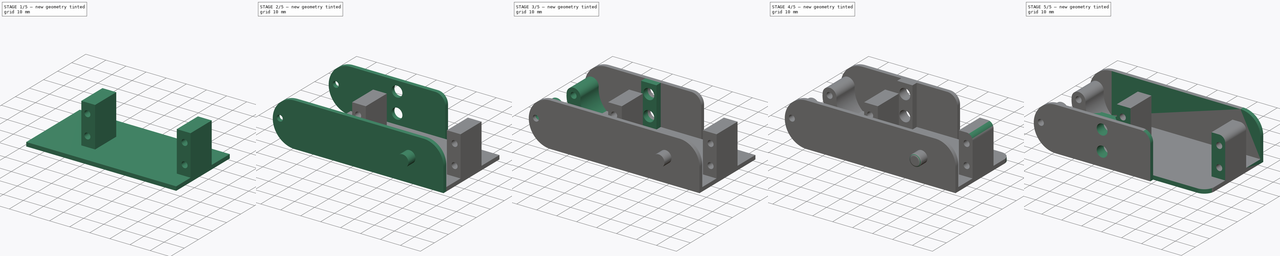
[diagram: build sequence overview — one tinted view per stage of 5, left to right]
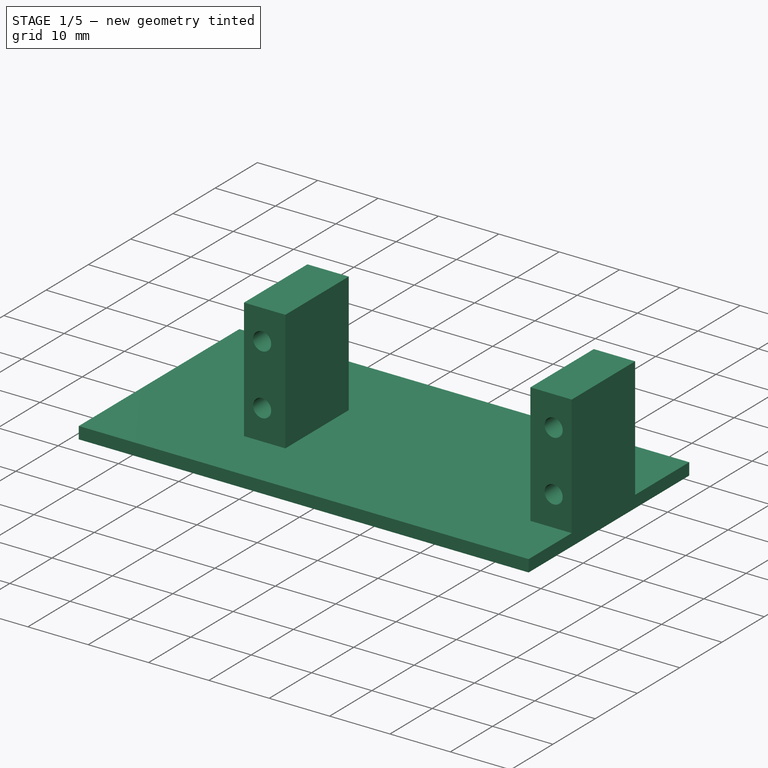
[diagram: stage 1 of 5 — iso view after this stage's code; geometry added in this stage tinted green]
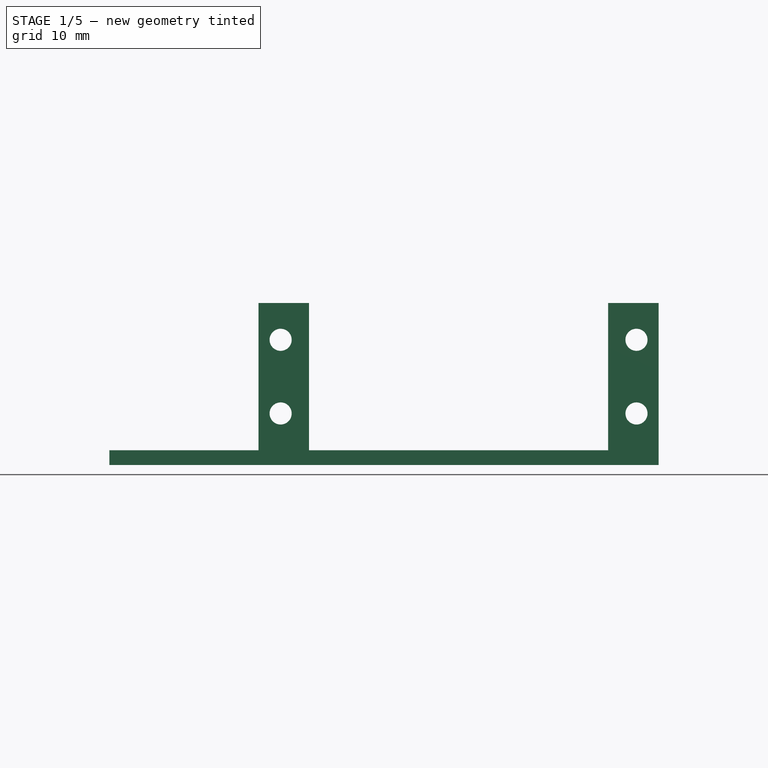
[diagram: stage 1 of 5 — front view after this stage's code; geometry added in this stage tinted green]
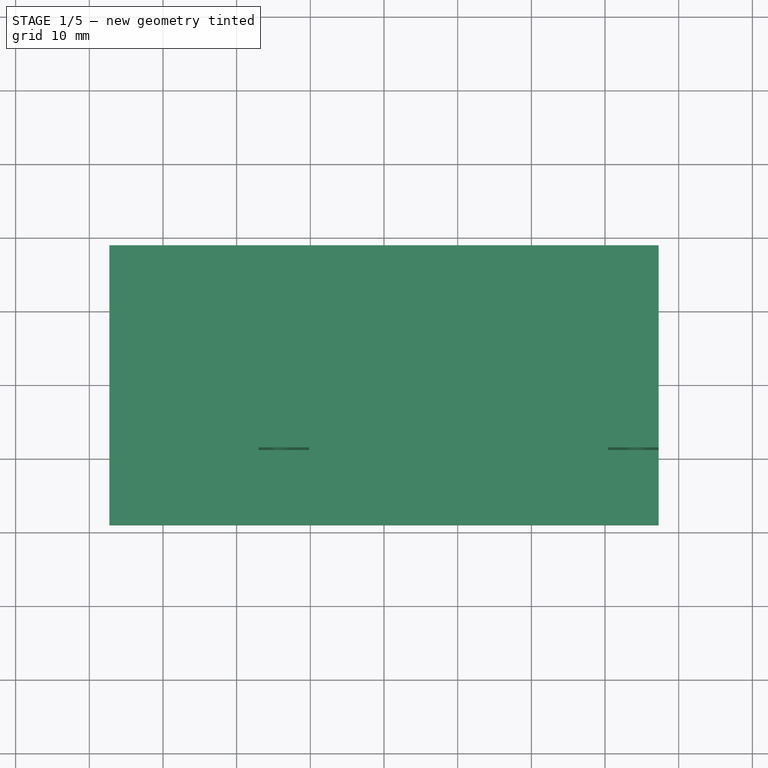
[diagram: stage 1 of 5 — top view after this stage's code; geometry added in this stage tinted green]
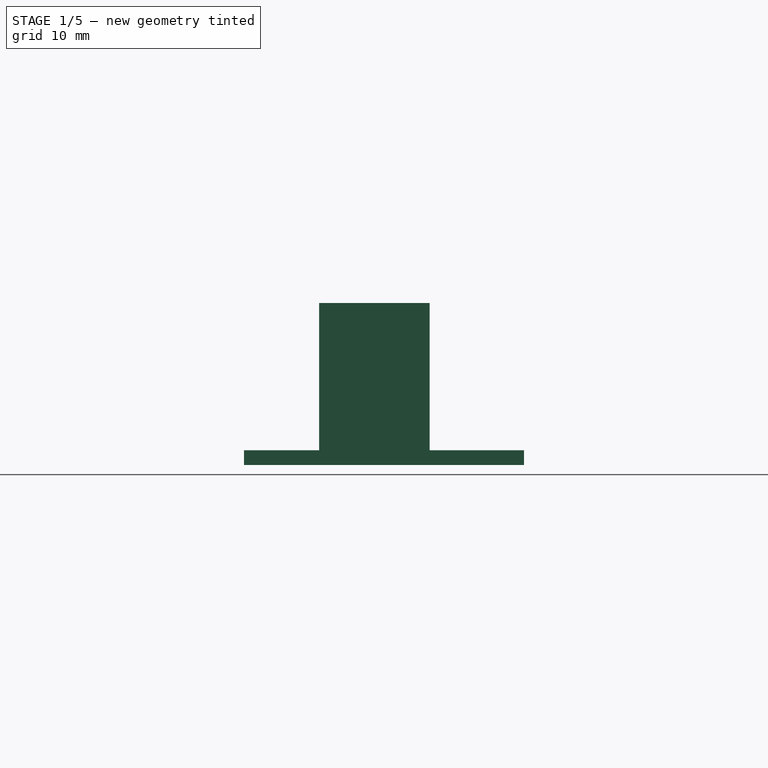
[diagram: stage 1 of 5 — right view after this stage's code; geometry added in this stage tinted green]
FCSTD DOCUMENT  (FreeCAD 0.21R33668 +26 (Git))
Label: 3BL_calf2
License: All rights reserved
LicenseURL: http://en.wikipedia.org/wiki/All_rights_reserved
objects: Sketcher::SketchObject×9, PartDesign::Pad×8, PartDesign::Fillet×3, PartDesign::Chamfer×2, Spreadsheet::Sheet×1, PartDesign::Pocket×1, PartDesign::Body×1, Part::Mirroring×1
note: 39 computed .brp shape members not serialized (recipe doc carries the construction recipe); baked Part::Feature solids carry a one-line shape summary decoded from their .brp

FEATURE [Sketcher::SketchObject] Sketch  label="baseSketch"
  FullyConstrained = false
  MapMode = 5
  Support = -> [XY_Plane]
  expr: Constraints[6] = Spreadsheet.servo_y
  sketch-geometry (4):
    g0: LineSegment StartX=-37.2687 StartY=19 StartZ=0 EndX=37.2687 EndY=19 EndZ=0
    g1: LineSegment StartX=37.2687 StartY=19 StartZ=0 EndX=37.2687 EndY=-19 EndZ=0
    g2: LineSegment StartX=37.2687 StartY=-19 StartZ=0 EndX=-37.2687 EndY=-19 EndZ=0
    g3: LineSegment StartX=-37.2687 StartY=-19 StartZ=0 EndX=-37.2687 EndY=19 EndZ=0
  constraints (9):
    c: Coincident(g0,g1)
    c: Coincident(g1,g2)
    c: Coincident(g2,g3)
    c: Coincident(g3,g0)
    c: Horizontal(g2)
    c: Vertical(g1)
    c: DistanceY(g3,g3) = 38
    c: Symmetric(g0,g2,g-1)
    c: Symmetric(g0,g0,g-2)
FEATURE [Spreadsheet::Sheet] Spreadsheet
  cells = A1='tolerance; B1(tolerance)=0.2; A2='thickness; B2(thickness)=2; A3='calf_len_overall; B3(calf_len_overall)=86; A4='servo_outer_x; B4(servo_x)=54.3; A5='servo_inner_x; B5(servo_inner_x)=40.2; A6='servo_y; B6(servo_y)=38; D6='sketch 41,5 real 38,0; A7='servo_z; B7(servo_z)=20; D7='also half circles diameter plus thickness; A8='foothold_y_len; B8(foothold_y_len)=15; A9='foothold_y_pos; B9(foothold_y_pos)==25.8 + B2; C9='c; D9='sketch 27.8 real 25,1; A10='foothold_z_len; B10(foothold_z_len)==B7; C10='c; A11='foothold_x_len; B11(foothold_x_len)==(B4 - B5) / 2 - B1; C11='c; A12='upper_hole_z_pos; B12(upper_hole_z_pos)=15; A13='lower_hole_z_pos; B13(lower_hole_z_pos)=5; A14='hole_x_pos; B14(hole_x_pos)=3; A15='hole_diameter; B15(hole_diameter)=3; A16='axis_x_pos; B16(axis_x_pos)=37.25; A17='axis_z_pos; B17(axis_z_pos)==10 + B2; A18='axis_y_pos; B18(axis_y_pos)=0; A19='axis_diameter; B19(axis_diameter)=5.9; A20='axis_length; B20(axis_length)=5; A21='plate_y_dim; B21(plate_y_dim)==B6 + B2; C21='c; A22='servo_axis_x_pos; B22(servo_axis_x_pos)=17; A23='calf_axis_distance; B23(calf_axis_distance)=65; A24='ankle_screw_extrusion; B24(ankle_screw_extrusion)=13
FEATURE [PartDesign::Pad] Pad  label="basePad"
  Direction = (0,0,1)
  Length = 2
  Length2 = 10
  Profile = -> Sketch
  ReferenceAxis = -> Sketch [N_Axis]
  Type = 0
  expr: Length = Spreadsheet.thickness
FEATURE [Sketcher::SketchObject] Sketch001  label="servoHolderSketch"
  ExternalGeometry = -> [Pad]
  FullyConstrained = true
  MapMode = 5
  Placement = pos=(0,0,2) rot=(0,0,1;0rad)
  Support = -> [Pad]
  expr: Constraints[20] = Spreadsheet.foothold_y_len
  expr: Constraints[22] = Spreadsheet.servo_x
  expr: Constraints[23] = Spreadsheet.foothold_y_pos
  expr: Constraints[9] = Spreadsheet.foothold_x_len
  sketch-geometry (8):
    g0: LineSegment StartX=37.2687 StartY=6.2 StartZ=0 EndX=30.4187 EndY=6.2 EndZ=0
    g1: LineSegment StartX=30.4187 StartY=6.2 StartZ=0 EndX=30.4187 EndY=-8.8 EndZ=0
    g2: LineSegment StartX=30.4187 StartY=-8.8 StartZ=0 EndX=37.2687 EndY=-8.8 EndZ=0
    g3: LineSegment StartX=37.2687 StartY=-8.8 StartZ=0 EndX=37.2687 EndY=6.2 EndZ=0
    g4: LineSegment StartX=-17.0313 StartY=6.2 StartZ=0 EndX=-10.1813 EndY=6.2 EndZ=0
    g5: LineSegment StartX=-10.1813 StartY=6.2 StartZ=0 EndX=-10.1813 EndY=-8.8 EndZ=0
    g6: LineSegment StartX=-10.1813 StartY=-8.8 StartZ=0 EndX=-17.0313 EndY=-8.8 EndZ=0
    g7: LineSegment StartX=-17.0313 StartY=-8.8 StartZ=0 EndX=-17.0313 EndY=6.2 EndZ=0
  constraints (24):
    c: Coincident(g0,g1)
    c: Coincident(g1,g2)
    c: Coincident(g2,g3)
    c: Coincident(g3,g0)
    c: Horizontal(g0)
    c: Horizontal(g2)
    c: Vertical(g1)
    c: Vertical(g3)
    c: PointOnObject(g0,g-3)
    c: DistanceX(g0,g0) = 6.85
    c: Coincident(g4,g5)
    c: Coincident(g5,g6)
    c: Coincident(g6,g7)
    c: Coincident(g7,g4)
    c: Horizontal(g4)
    c: Horizontal(g6)
    c: Vertical(g5)
    c: Vertical(g7)
    c: Horizontal(g4,g0)
    c: Horizontal(g5,g1)
    c: DistanceY(g3,g3) = 15
    c: Equal(g4,g0)
    c: DistanceX(g6,g2) = 54.3
    c: DistanceY(g2,g-3) = 27.8
FEATURE [PartDesign::Pad] Pad001  label="servoHolderPad"
  BaseFeature = -> Pad
  Direction = (0,0,1)
  Length = 20
  Length2 = 10
  Profile = -> Sketch001
  ReferenceAxis = -> Sketch001 [N_Axis]
  Type = 0
  expr: Length = Spreadsheet.foothold_z_len
FEATURE [Sketcher::SketchObject] Sketch002  label="servoHolderHolesSketch"
  ExternalGeometry = -> [Pad001]
  FullyConstrained = true
  MapMode = 5
  Placement = pos=(0,-8.8,0) rot=(1,0,0;1.5708rad)
  Support = -> [Pad001]
  expr: Constraints[10] = Spreadsheet.hole_x_pos
  expr: Constraints[11] = Spreadsheet.hole_x_pos
  expr: Constraints[4] = Spreadsheet.lower_hole_z_pos
  expr: Constraints[5] = Spreadsheet.upper_hole_z_pos
  expr: Constraints[9] = Spreadsheet.hole_diameter
  sketch-geometry (4):
    g0: Circle CenterX=-14.0313 CenterY=17 CenterZ=0 NormalX=0 NormalY=0 NormalZ=1 AngleXU=0 Radius=1.5
    g1: Circle CenterX=-14.0313 CenterY=7 CenterZ=0 NormalX=0 NormalY=0 NormalZ=1 AngleXU=0 Radius=1.5
    g2: Circle CenterX=34.2687 CenterY=17 CenterZ=0 NormalX=0 NormalY=0 NormalZ=1 AngleXU=0 Radius=1.5
    g3: Circle CenterX=34.2687 CenterY=7 CenterZ=0 NormalX=0 NormalY=0 NormalZ=1 AngleXU=0 Radius=1.5
  constraints (12):
    c: Vertical(g0,g1)
    c: Vertical(g2,g3)
    c: Horizontal(g2,g0)
    c: Horizontal(g1,g3)
    c: DistanceY(g-3,g3) = 5
    c: DistanceY(g-3,g2) = 15
    c: Equal(g2,g3)
    c: Equal(g2,g0)
    c: Equal(g2,g1)
    c: Diameter(g2) = 3
    c: DistanceX(g3,g-3) = 3
    c: DistanceX(g-4,g1) = 3
FEATURE [PartDesign::Pocket] Pocket  label="servoHolderHolesPocket"
  BaseFeature = -> Pad001
  Direction = (0,1,-2e-16)
  Length = 17
  Length2 = 5
  Profile = -> Sketch002
  ReferenceAxis = -> Sketch002 [N_Axis]
  Type = 0
  expr: Length = Spreadsheet.foothold_y_len + 2
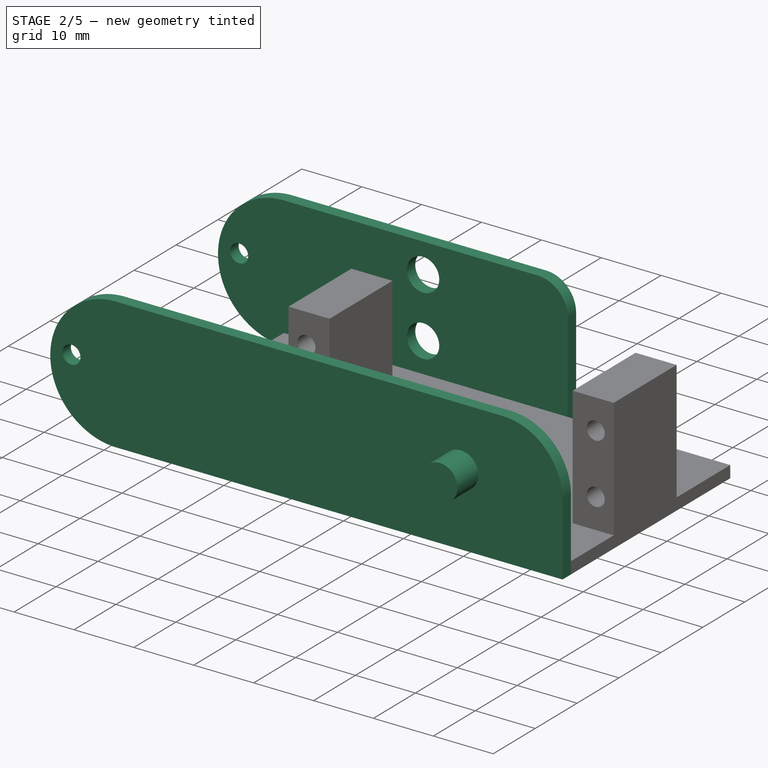
[diagram: stage 2 of 5 — iso view after this stage's code; geometry added in this stage tinted green]
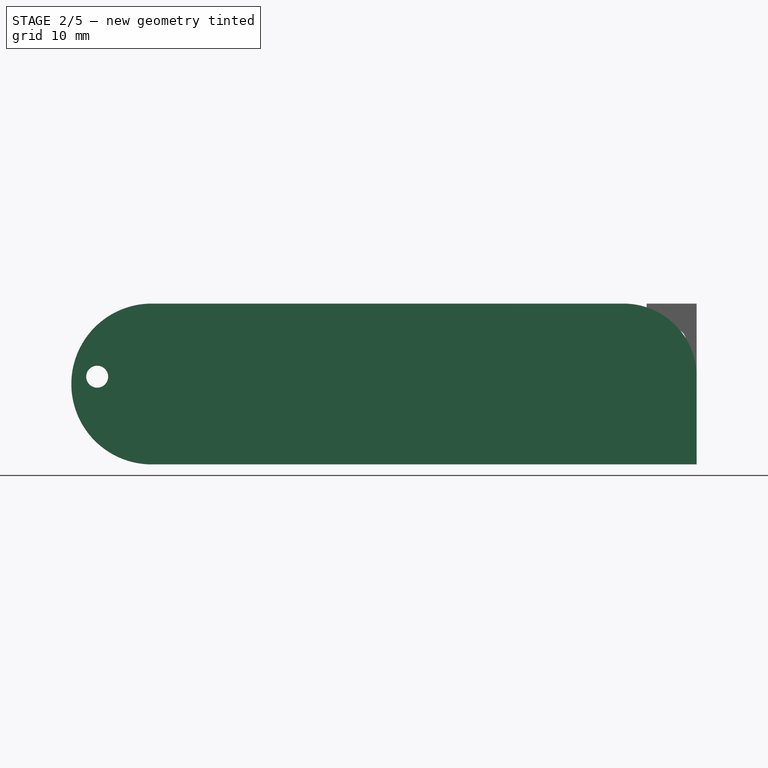
[diagram: stage 2 of 5 — front view after this stage's code; geometry added in this stage tinted green]
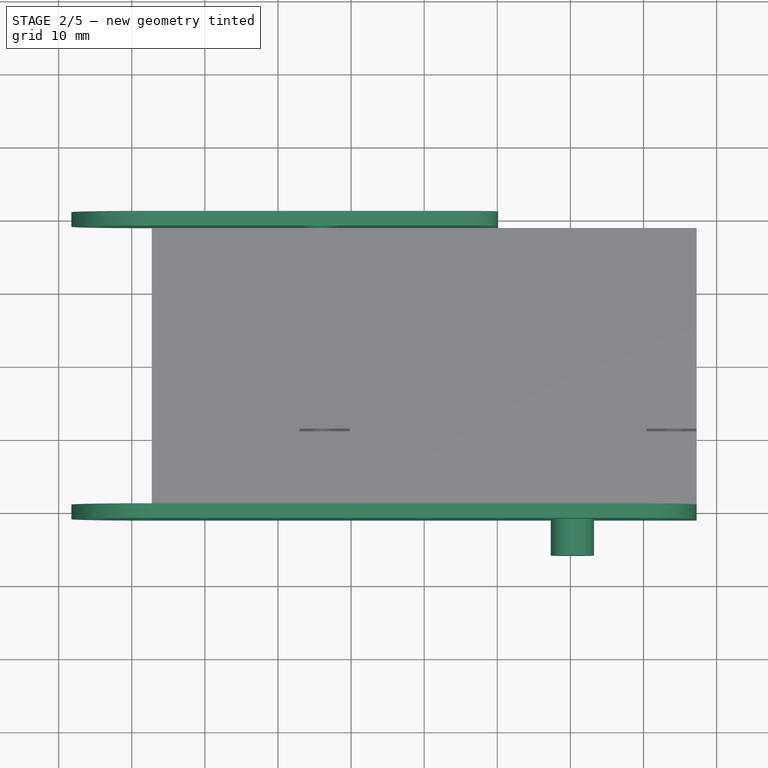
[diagram: stage 2 of 5 — top view after this stage's code; geometry added in this stage tinted green]
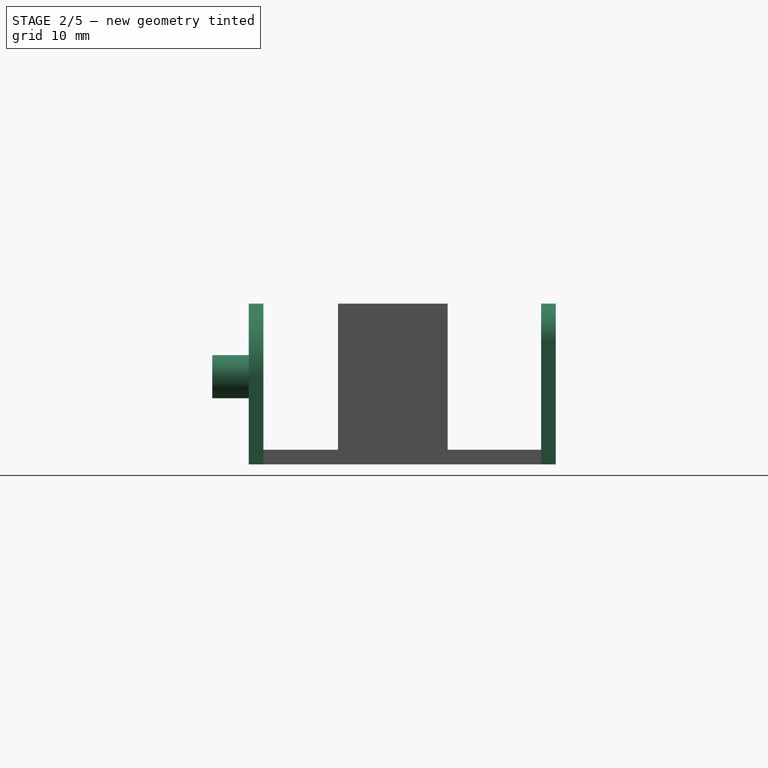
[diagram: stage 2 of 5 — right view after this stage's code; geometry added in this stage tinted green]
FEATURE [Sketcher::SketchObject] Sketch003  label="servoBackSketch"
  ExternalGeometry = -> [Pocket]
  FullyConstrained = true
  MapMode = 5
  Placement = pos=(0,-19,0) rot=(1,0,0;1.5708rad)
  Support = -> [Pocket]
  expr: Constraints[10] = Spreadsheet.servo_axis_x_pos
  expr: Constraints[12] = Spreadsheet.calf_axis_distance
  expr: Constraints[13] = Spreadsheet.hole_diameter
  sketch-geometry (8):
    g0: LineSegment StartX=37.2687 StartY=0 StartZ=0 EndX=-37.2687 EndY=0 EndZ=0
    g1: LineSegment StartX=-37.2687 StartY=22 StartZ=0 EndX=27.2687 EndY=22 EndZ=0
    g2: LineSegment StartX=37.2687 StartY=12 StartZ=0 EndX=37.2687 EndY=0 EndZ=0
    g3: ArcOfCircle CenterX=-37.2687 CenterY=11 CenterZ=0 NormalX=0 NormalY=0 NormalZ=1 AngleXU=0 Radius=11 StartAngle=1.5708 EndAngle=4.71239
    g4: GeomPoint X=37.2687 Y=12 Z=0
    g5: GeomPoint X=20.2687 Y=12 Z=0
    g6: Circle CenterX=-44.7313 CenterY=12 CenterZ=0 NormalX=0 NormalY=0 NormalZ=1 AngleXU=0 Radius=1.5
    g7: ArcOfCircle CenterX=27.2687 CenterY=12 CenterZ=0 NormalX=0 NormalY=0 NormalZ=1 AngleXU=0 Radius=10 StartAngle=0 EndAngle=1.5708
  constraints (18):
    c: Coincident(g2,g0)
    c: Horizontal(g1)
    c: Coincident(g0,g-4)
    c: Coincident(g0,g-4)
    c: Coincident(g3,g0)
    c: Coincident(g3,g1)
    c: Horizontal(g1,g-5)
    c: Vertical(g3,g0)
    c: Vertical(g3,g1)
    c: Horizontal(g5,g4)
    c: DistanceX(g5,g4) = 17
    c: Horizontal(g6,g5)
    c: DistanceX(g6,g5) = 65
    c: Diameter(g6) = 3
    c: Tangent(g1,g7) = 1.5708
    c: Tangent(g2,g7) = 1.5708
    c: Symmetric(g-6,g-6,g2)
    c: Coincident(g2,g4)
FEATURE [PartDesign::Pad] Pad002  label="servoBackPad"
  BaseFeature = -> Pocket
  Direction = (0,-1,2e-16)
  Length = 2
  Length2 = 10
  Profile = -> Sketch003
  ReferenceAxis = -> Sketch003 [N_Axis]
  Type = 0
  expr: Length = Spreadsheet.thickness
FEATURE [Sketcher::SketchObject] Sketch004  label="servoAxisCounterKnobSketch"
  ExternalGeometry = -> [Pad002]
  FullyConstrained = true
  MapMode = 5
  Placement = pos=(0,-21,3.6e-15) rot=(1,0,0;1.5708rad)
  Support = -> [Pad002]
  expr: Constraints[1] = Spreadsheet.calf_axis_distance
  expr: Constraints[2] = Spreadsheet.axis_diameter
  sketch-geometry (1):
    g0: Circle CenterX=20.2687 CenterY=12 CenterZ=0 NormalX=0 NormalY=0 NormalZ=1 AngleXU=0 Radius=2.95
  constraints (3):
    c: Horizontal(g-3,g0)
    c: DistanceX(g-3,g0) = 65
    c: Diameter(g0) = 5.9
FEATURE [PartDesign::Pad] Pad003  label="servoAxisCounterKnobPad"
  BaseFeature = -> Pad002
  Direction = (0,-1,2e-16)
  Length = 5
  Length2 = 10
  Profile = -> Sketch004
  ReferenceAxis = -> Sketch004 [N_Axis]
  Type = 0
  expr: Length = Spreadsheet.axis_length
FEATURE [Sketcher::SketchObject] Sketch005  label="servoFrontSketch"
  ExternalGeometry = -> [Pad003]
  FullyConstrained = true
  MapMode = 5
  Placement = pos=(0,19,0) rot=(0,0.707107,0.707107;3.14159rad)
  Support = -> [Pad003]
  expr: Constraints[13] = Spreadsheet.hole_diameter + 2.4
  sketch-geometry (9):
    g0: LineSegment StartX=37.2687 StartY=22 StartZ=0 EndX=-5.11873 EndY=22 EndZ=0
    g1: ArcOfCircle CenterX=37.2687 CenterY=11 CenterZ=0 NormalX=0 NormalY=0 NormalZ=1 AngleXU=0 Radius=11 StartAngle=4.71239 EndAngle=7.85398
    g2: GeomPoint X=-10.1187 Y=22 Z=0
    g3: LineSegment StartX=-10.1187 StartY=17 StartZ=0 EndX=-10.1187 EndY=0 EndZ=0
    g4: LineSegment StartX=-10.1187 StartY=0 StartZ=0 EndX=37.2687 EndY=0 EndZ=0
    g5: Circle CenterX=14.0313 CenterY=17 CenterZ=0 NormalX=0 NormalY=0 NormalZ=1 AngleXU=0 Radius=2.7
    g6: Circle CenterX=14.0313 CenterY=7 CenterZ=0 NormalX=0 NormalY=0 NormalZ=1 AngleXU=0 Radius=2.7
    g7: ArcOfCircle CenterX=-5.11873 CenterY=17 CenterZ=0 NormalX=0 NormalY=0 NormalZ=1 AngleXU=0 Radius=5 StartAngle=1.5708 EndAngle=3.14159
    g8: Circle CenterX=44.7313 CenterY=12 CenterZ=0 NormalX=0 NormalY=0 NormalZ=1 AngleXU=0 Radius=1.5
  constraints (21):
    c: Horizontal(g0)
    c: Coincident(g1,g0)
    c: Coincident(g1,g-6)
    c: Symmetric(g-4,g-3,g2)
    c: PointOnObject(g3,g-1)
    c: Vertical(g3)
    c: Coincident(g4,g3)
    c: Coincident(g4,g1)
    c: Horizontal(g4)
    c: Vertical(g0,g1)
    c: Coincident(g5,g-8)
    c: Coincident(g6,g-9)
    c: Equal(g5,g6)
    c: Diameter(g5) = 5.4
    c: Tangent(g0,g7) = -1.5708
    c: Tangent(g3,g7) = -1.5708
    c: Horizontal(g7,g5)
    c: Vertical(g3,g2)
    c: Vertical(g1,g1)
    c: Equal(g-5,g8)
    c: Coincident(g8,g-5)
FEATURE [PartDesign::Pad] Pad004  label="servoFrontPad"
  BaseFeature = -> Pad003
  Direction = (0,1,-2e-16)
  Length = 2
  Length2 = 10
  Profile = -> Sketch005
  ReferenceAxis = -> Sketch005 [N_Axis]
  Type = 0
  expr: Length = Spreadsheet.thickness
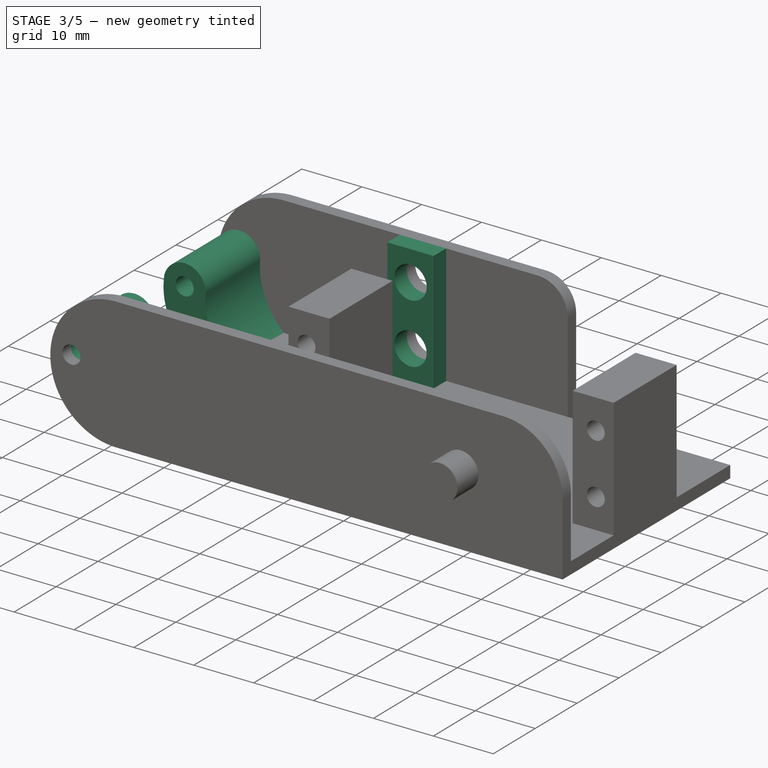
[diagram: stage 3 of 5 — iso view after this stage's code; geometry added in this stage tinted green]
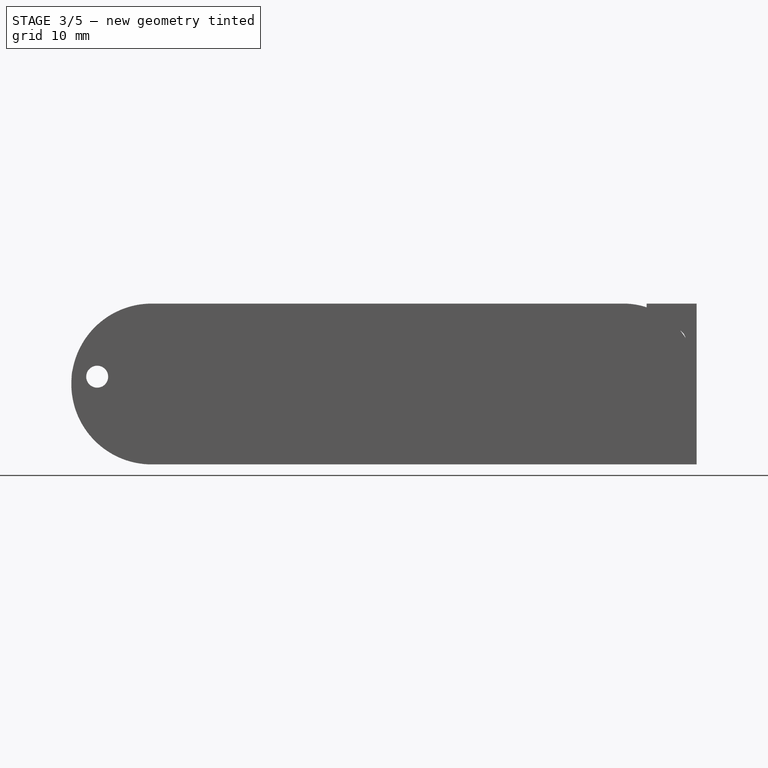
[diagram: stage 3 of 5 — front view after this stage's code; geometry added in this stage tinted green]
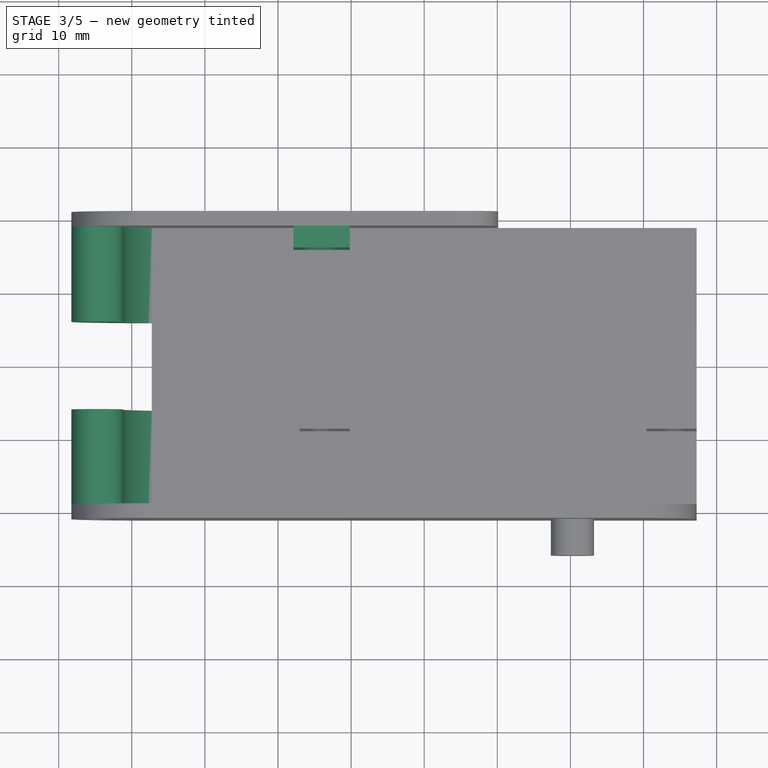
[diagram: stage 3 of 5 — top view after this stage's code; geometry added in this stage tinted green]
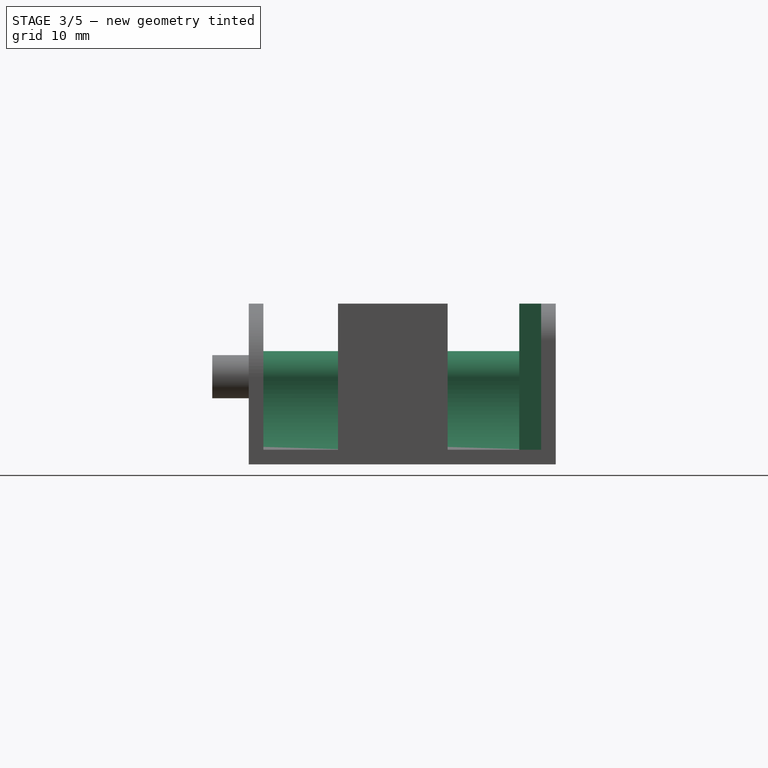
[diagram: stage 3 of 5 — right view after this stage's code; geometry added in this stage tinted green]
FEATURE [Sketcher::SketchObject] Sketch006  label="frontScrewHeadHolesSketch"
  ExternalGeometry = -> [Pad004]
  FullyConstrained = true
  MapMode = 5
  Placement = pos=(0,19,-3.4e-15) rot=(1,0,0;1.5708rad)
  Support = -> [Pad004]
  sketch-geometry (7):
    g0: LineSegment StartX=-17.8813 StartY=22 StartZ=0 EndX=-10.1813 EndY=22 EndZ=0
    g1: LineSegment StartX=-10.1813 StartY=22 StartZ=0 EndX=-10.1813 EndY=2 EndZ=0
    g2: LineSegment StartX=-10.1813 StartY=2 StartZ=0 EndX=-17.8813 EndY=2 EndZ=0
    g3: LineSegment StartX=-17.8813 StartY=2 StartZ=0 EndX=-17.8813 EndY=22 EndZ=0
    g4: Circle CenterX=-14.0313 CenterY=7 CenterZ=0 NormalX=0 NormalY=0 NormalZ=1 AngleXU=0 Radius=2.7
    g5: GeomPoint X=-14.0313 Y=22 Z=0
    g6: Circle CenterX=-14.0313 CenterY=17 CenterZ=0 NormalX=0 NormalY=0 NormalZ=1 AngleXU=0 Radius=2.7
  constraints (16):
    c: Coincident(g0,g1)
    c: Coincident(g1,g2)
    c: Coincident(g2,g3)
    c: Coincident(g3,g0)
    c: Horizontal(g0)
    c: Horizontal(g2)
    c: Vertical(g1)
    c: Vertical(g3)
    c: PointOnObject(g1,g-6)
    c: Equal(g4,g-4)
    c: Coincident(g4,g-4)
    c: Symmetric(g0,g0,g5)
    c: Coincident(g-7,g0)
    c: Vertical(g-3,g5)
    c: Equal(g6,g-3)
    c: Coincident(g6,g-3)
FEATURE [PartDesign::Pad] Pad005  label="frontScrewHeadHolesPad"
  BaseFeature = -> Pad004
  Direction = (0,-1,2e-16)
  Length = 3
  Length2 = 10
  Profile = -> Sketch006
  ReferenceAxis = -> Sketch006 [N_Axis]
  Type = 0
  expr: Length = 3
FEATURE [Sketcher::SketchObject] Sketch007  label="frontAnkleScrewHoleSketch"
  ExternalGeometry = -> [Pad005]
  FullyConstrained = true
  MapMode = 5
  Placement = pos=(0,19,-3.4e-15) rot=(1,0,0;1.5708rad)
  Support = -> [Pad005]
  sketch-geometry (7):
    g0: GeomPoint X=-48.2232 Y=12 Z=0
    g1: GeomPoint X=-41.2394 Y=12 Z=0
    g2: ArcOfCircle CenterX=-29.1801 CenterY=11 CenterZ=0 NormalX=0 NormalY=0 NormalZ=1 AngleXU=0 Radius=12.1007 StartAngle=3.05886 EndAngle=3.98027
    g3: ArcOfCircle CenterX=-37.2687 CenterY=11 CenterZ=0 NormalX=0 NormalY=0 NormalZ=1 AngleXU=0 Radius=11 StartAngle=3.05056 EndAngle=4.71239
    g4: LineSegment StartX=-37.2687 StartY=2 StartZ=0 EndX=-37.2687 EndY=2.16804e-11 EndZ=0
    g5: ArcOfCircle CenterX=-44.7313 CenterY=12 CenterZ=0 NormalX=0 NormalY=0 NormalZ=1 AngleXU=0 Radius=3.49191 StartAngle=1.70189e-07 EndAngle=3.14159
    g6: Circle CenterX=-44.7313 CenterY=12 CenterZ=0 NormalX=0 NormalY=0 NormalZ=1 AngleXU=0 Radius=1.5
  constraints (15):
    c: PointOnObject(g0,g-4)
    c: Symmetric(g1,g0,g-3)
    c: Coincident(g2,g1)
    c: Coincident(g2,g-5)
    c: Horizontal(g2,g-4)
    c: Coincident(g3,g0)
    c: Coincident(g3,g-4)
    c: Horizontal(g3,g-4)
    c: Coincident(g4,g2)
    c: Coincident(g4,g3)
    c: Coincident(g5,g-3)
    c: Coincident(g5,g2)
    c: Coincident(g5,g3)
    c: Equal(g6,g-3)
    c: Coincident(g5,g6)
FEATURE [PartDesign::Pad] Pad006  label="frontAnkleScrewHolePad"
  BaseFeature = -> Pad005
  Direction = (0,-1,2e-16)
  Length = 13
  Length2 = 10
  Profile = -> Sketch007
  ReferenceAxis = -> Sketch007 [N_Axis]
  Type = 0
  expr: Length = Spreadsheet.ankle_screw_extrusion
FEATURE [Sketcher::SketchObject] Sketch008  label="backAnkleScrewHoleSketch"
  ExternalGeometry = -> [Pad006]
  FullyConstrained = true
  MapMode = 5
  Placement = pos=(0,-19,3.2e-15) rot=(0,0.707107,0.707107;3.14159rad)
  Support = -> [Pad006]
  sketch-geometry (7):
    g0: GeomPoint X=48.2232 Y=12 Z=0
    g1: GeomPoint X=41.2394 Y=12 Z=0
    g2: LineSegment StartX=37.2687 StartY=2 StartZ=0 EndX=37.2687 EndY=-1.8e-15 EndZ=0
    g3: ArcOfCircle CenterX=29.1801 CenterY=11 CenterZ=0 NormalX=0 NormalY=0 NormalZ=1 AngleXU=0 Radius=12.1007 StartAngle=5.44451 EndAngle=6.36592
    g4: ArcOfCircle CenterX=37.2687 CenterY=11 CenterZ=0 NormalX=0 NormalY=0 NormalZ=1 AngleXU=0 Radius=11 StartAngle=4.71239 EndAngle=6.37422
    g5: ArcOfCircle CenterX=44.7313 CenterY=12 CenterZ=0 NormalX=0 NormalY=0 NormalZ=1 AngleXU=0 Radius=3.49191 StartAngle=0 EndAngle=3.14159
    g6: Circle CenterX=44.7313 CenterY=12 CenterZ=0 NormalX=0 NormalY=0 NormalZ=1 AngleXU=0 Radius=1.5
  constraints (16):
    c: PointOnObject(g0,g-3)
    c: Symmetric(g0,g1,g-4)
    c: Horizontal(g-4,g0)
    c: Coincident(g2,g-5)
    c: Coincident(g2,g-3)
    c: Coincident(g3,g1)
    c: Coincident(g3,g2)
    c: Coincident(g4,g0)
    c: Coincident(g4,g2)
    c: Coincident(g5,g3)
    c: Coincident(g5,g4)
    c: Horizontal(g5,g3)
    c: Horizontal(g-3,g3)
    c: Horizontal(g4,g-3)
    c: Equal(g-4,g6)
    c: Coincident(g6,g5)
FEATURE [PartDesign::Pad] Pad007  label="backAnkleScrewHolePad"
  BaseFeature = -> Pad006
  Direction = (0,1,-2e-16)
  Length = 13
  Length2 = 10
  Profile = -> Sketch008
  ReferenceAxis = -> Sketch008 [N_Axis]
  Type = 0
  expr: Length = Spreadsheet.ankle_screw_extrusion
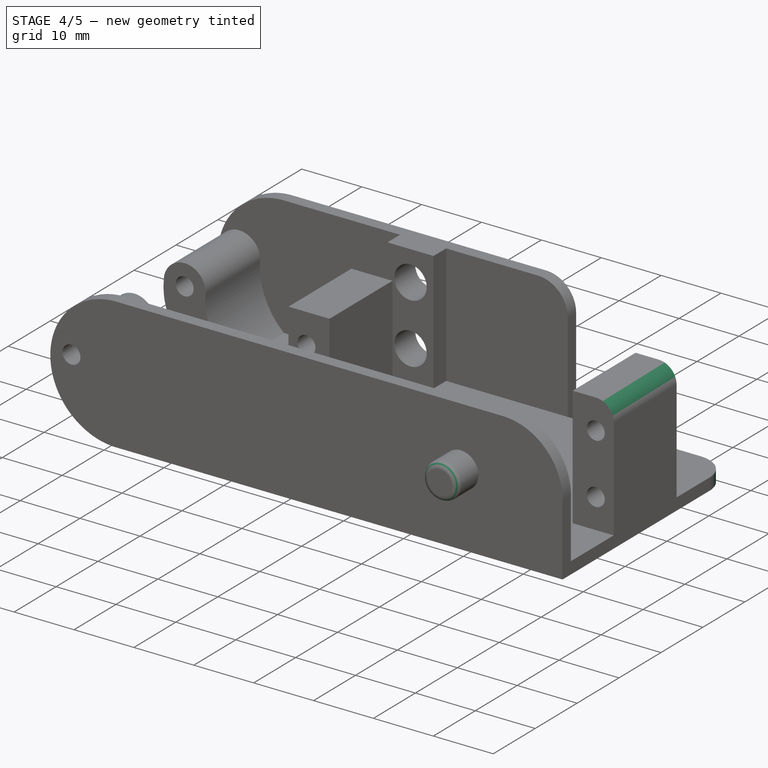
[diagram: stage 4 of 5 — iso view after this stage's code; geometry added in this stage tinted green]
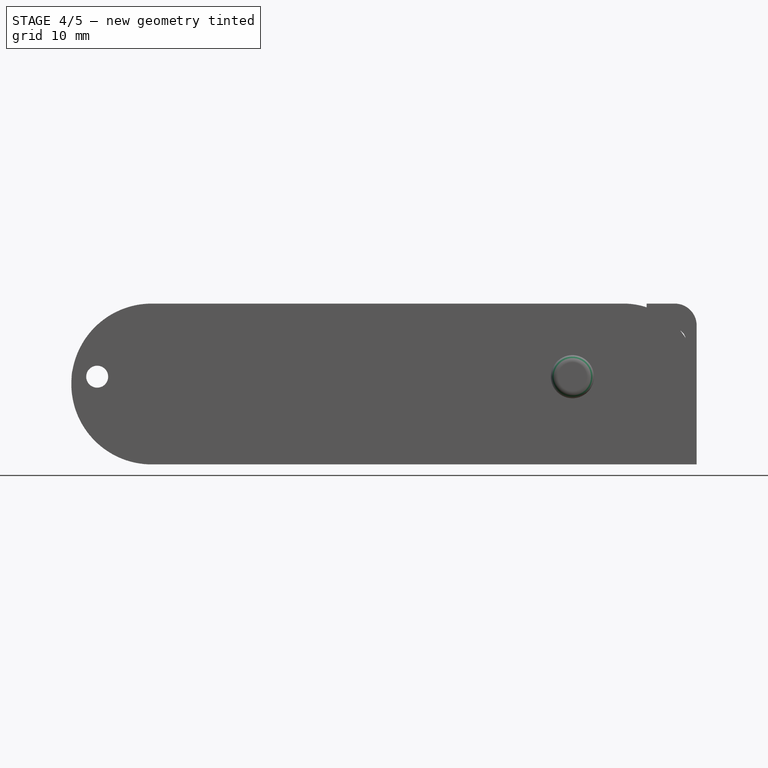
[diagram: stage 4 of 5 — front view after this stage's code; geometry added in this stage tinted green]
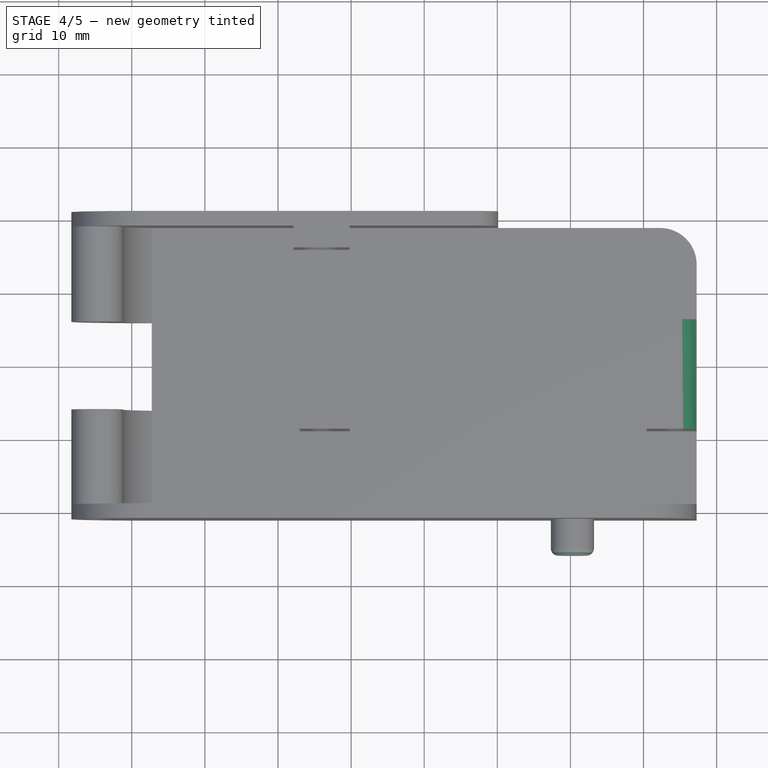
[diagram: stage 4 of 5 — top view after this stage's code; geometry added in this stage tinted green]
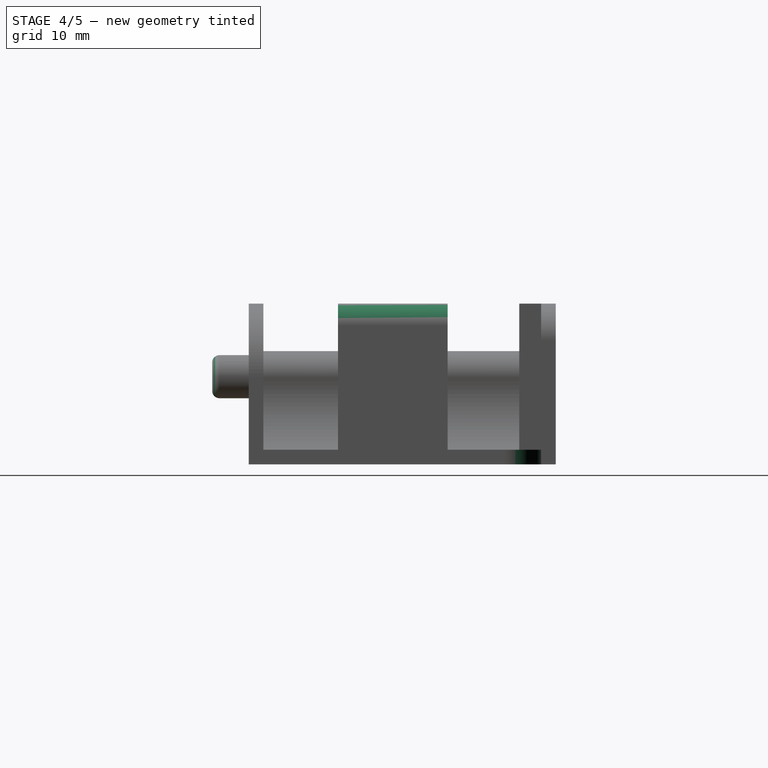
[diagram: stage 4 of 5 — right view after this stage's code; geometry added in this stage tinted green]
FEATURE [PartDesign::Fillet] Fillet  label="ServoHolderFillet"
  Base = -> Pad007 [Edge53]
  BaseFeature = -> Pad007
  Radius = 3
  SupportTransform = false
  UseAllEdges = false
FEATURE [PartDesign::Fillet] Fillet001  label="basePlateFillet"
  Base = -> Fillet [Edge13]
  BaseFeature = -> Fillet
  Radius = 5
  SupportTransform = false
  UseAllEdges = false
FEATURE [PartDesign::Fillet] Fillet002  label="servoCounterKnobFillet"
  Base = -> Fillet001 [Edge131]
  BaseFeature = -> Fillet001
  Radius = 1
  SupportTransform = false
  UseAllEdges = false
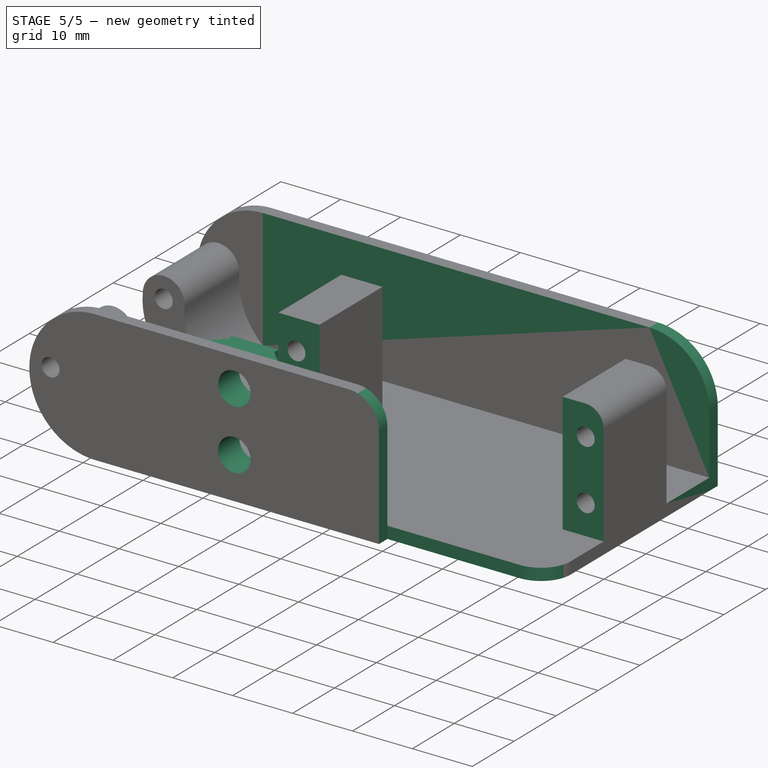
[diagram: stage 5 of 5 — iso view after this stage's code; geometry added in this stage tinted green]
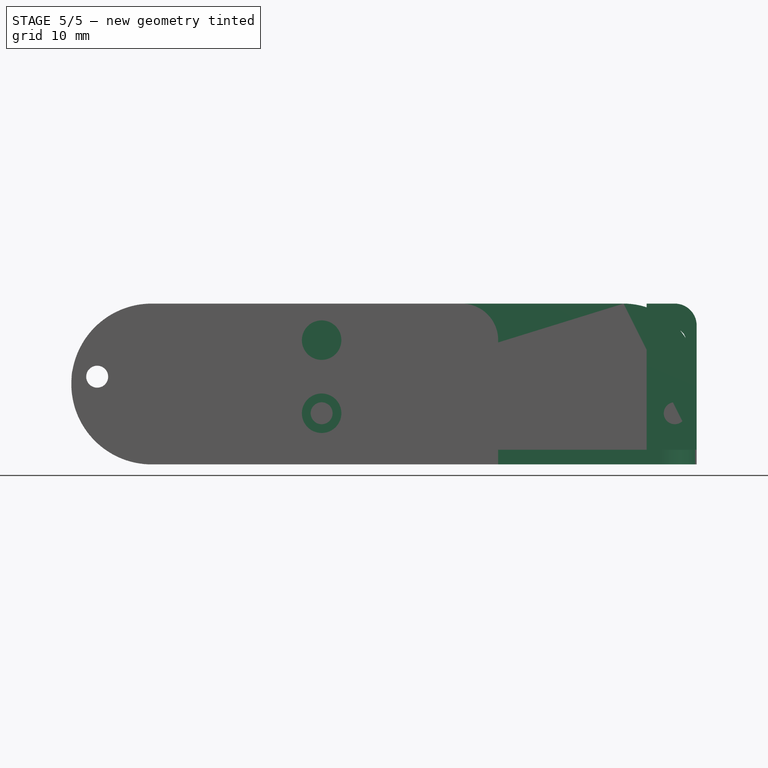
[diagram: stage 5 of 5 — front view after this stage's code; geometry added in this stage tinted green]
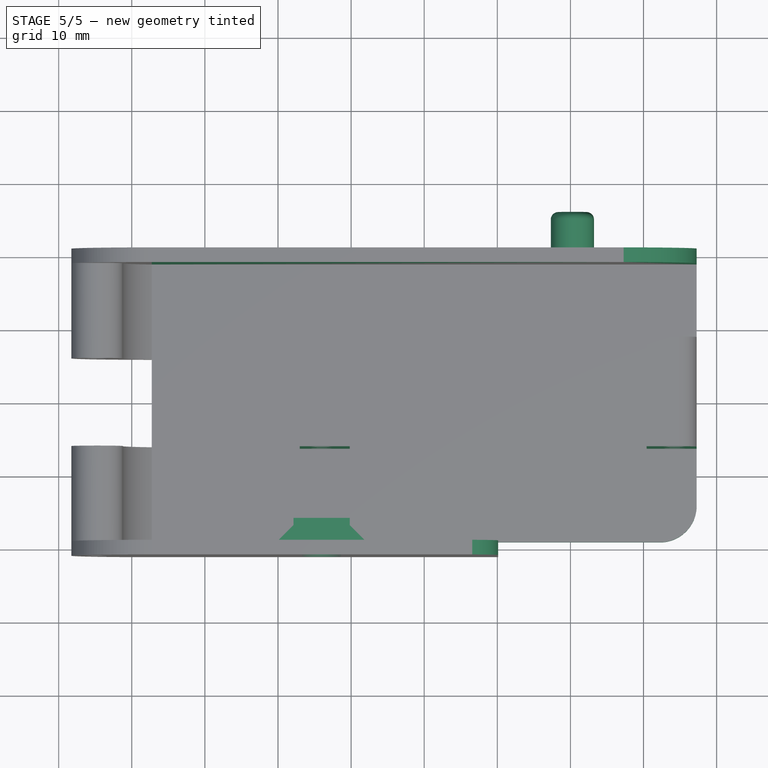
[diagram: stage 5 of 5 — top view after this stage's code; geometry added in this stage tinted green]
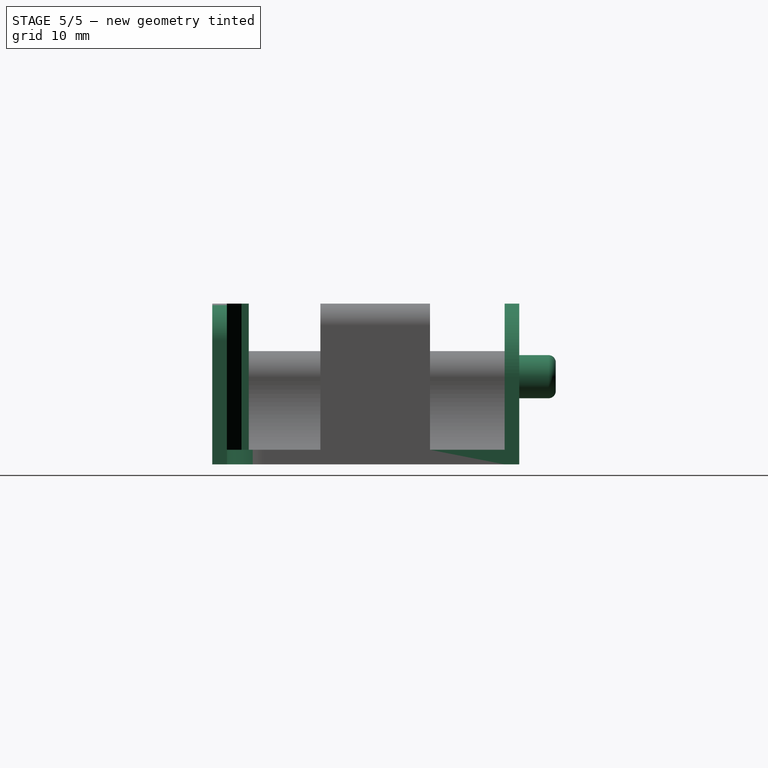
[diagram: stage 5 of 5 — right view after this stage's code; geometry added in this stage tinted green]
FEATURE [PartDesign::Chamfer] Chamfer
  Angle = 45
  Base = -> Fillet002 [Edge80]
  BaseFeature = -> Fillet002
  ChamferType = 0
  FlipDirection = false
  Size = 2
  Size2 = 1
  SupportTransform = false
  UseAllEdges = false
FEATURE [PartDesign::Chamfer] Chamfer001
  Angle = 45
  Base = -> Chamfer [Edge43]
  BaseFeature = -> Chamfer
  ChamferType = 0
  FlipDirection = false
  Size = 2
  Size2 = 1
  SupportTransform = false
  UseAllEdges = false
FEATURE [PartDesign::Body] Body
  Group = -> [Sketch,Pad,Sketch001,Pad001,Sketch002,Pocket,Sketch003,Pad002,Sketch004,Pad003,Sketch005,Pad004,Sketch006,Pad005,Sketch007,Pad006,Sketch008,Pad007,Fillet,Fillet001,Fillet002,Chamfer,Chamfer001]
  Origin = -> Origin
  Tip = -> Chamfer001
FEATURE [Part::Mirroring] Part__Mirroring  label="Body (Mirror #1)"
  Base = (0,0,0)
  Normal = (0,1,0)
  Source = -> Body
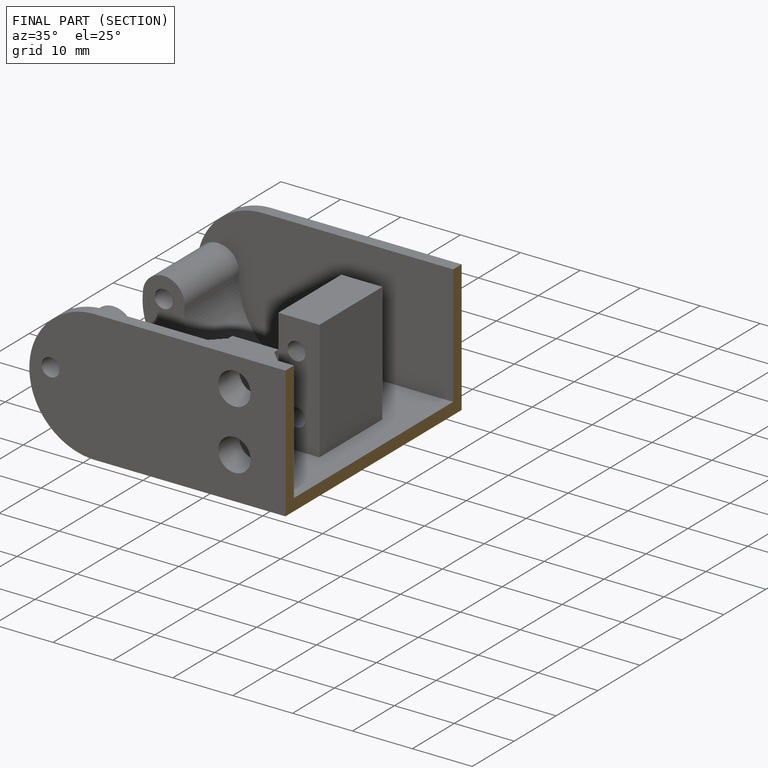
[diagram: finished part — half-section view (interior)]
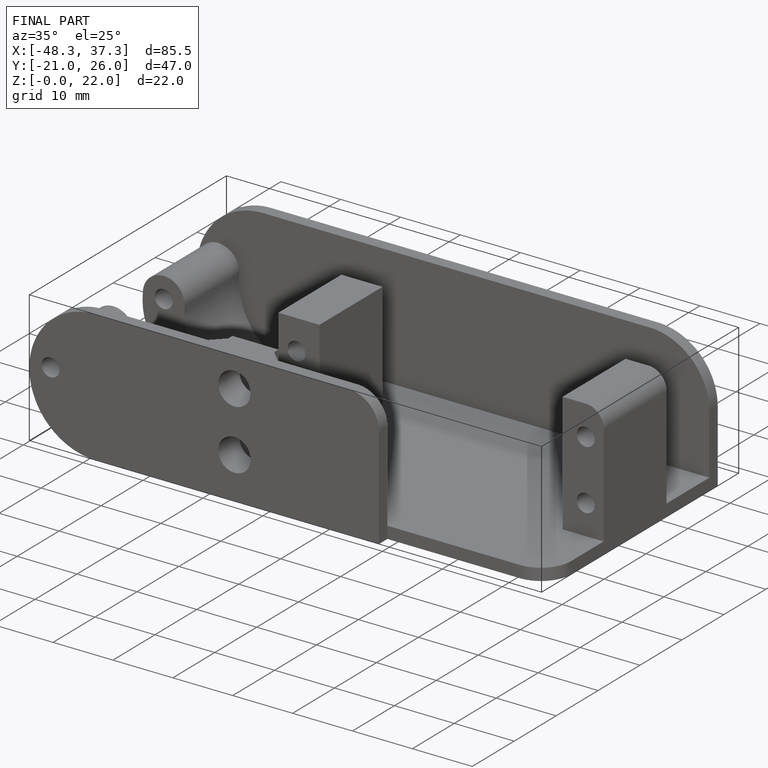
[diagram: finished part — iso view with bounding-box wireframe]
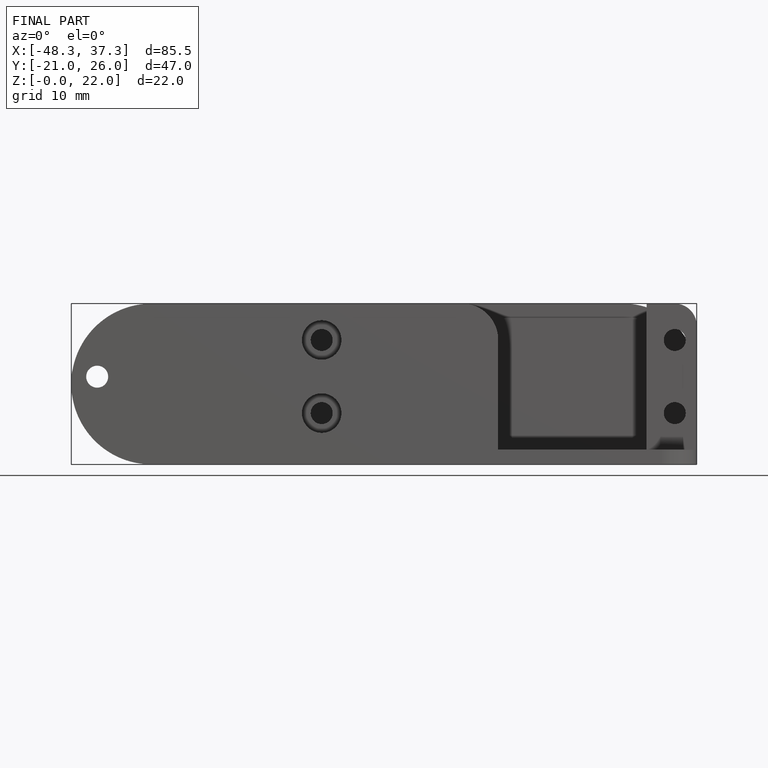
[diagram: finished part — front view with bounding-box wireframe]
